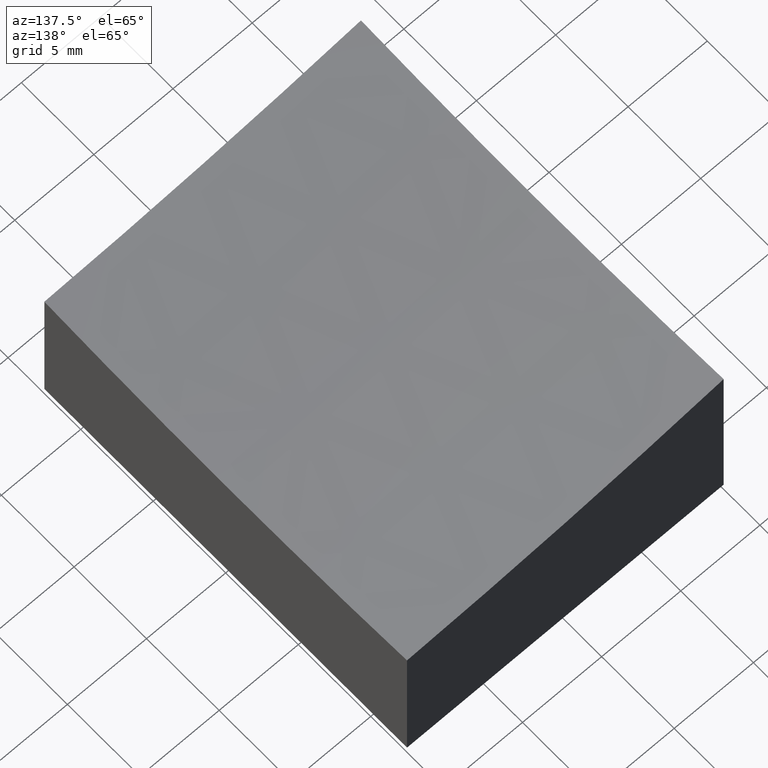
[diagram: clean part render]
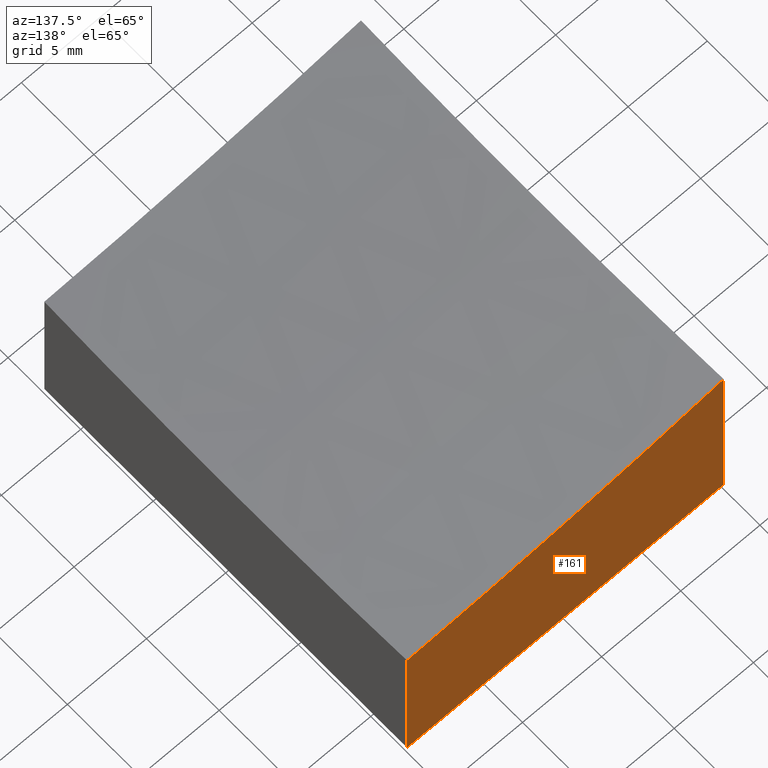
[diagram: same view with one face highlighted and labeled with its STEP entity id]
A machine part, auxiliary view. The second image highlights one B-rep face of the part: STEP entity #161.
In plain terms, the highlighted planar face has unit normal (0, -1, 0).
Its self-contained STEP definition (entity closure, byte-faithful):
#2 = CARTESIAN_POINT ( 'NONE',  ( -9.999999999999998224, 12.49999999999999645, 10.00000000000000000 ) ) ;
#3 = CARTESIAN_POINT ( 'NONE',  ( 10.00000000000000178, 12.50000000000000000, -10.00000000000000000 ) ) ;
#8 = EDGE_CURVE ( 'NONE', #121, #251, #205, .T. ) ;
#20 = EDGE_CURVE ( 'NONE', #121, #186, #221, .T. ) ;
#27 = DIRECTION ( 'NONE',  ( 1.000000000000000000, 1.740778375628798863E-16, 0.000000000000000000 ) ) ;
#28 = DIRECTION ( 'NONE',  ( 1.000000000000000000, 1.734723475976807094E-16, 0.000000000000000000 ) ) ;
#47 = CARTESIAN_POINT ( 'NONE',  ( 10.00000000000000178, 12.50000000000000000, 10.00000000000000000 ) ) ;
#52 = PLANE ( 'NONE',  #125 ) ;
#61 = VECTOR ( 'NONE', #74, 1000.000000000000000 ) ;
#63 = EDGE_CURVE ( 'NONE', #251, #266, #180, .T. ) ;
#74 = DIRECTION ( 'NONE',  ( -0.000000000000000000, -0.000000000000000000, -1.000000000000000000 ) ) ;
#78 = EDGE_LOOP ( 'NONE', ( #248, #206, #91, #225 ) ) ;
#91 = ORIENTED_EDGE ( 'NONE', *, *, #63, .T. ) ;
#121 = VERTEX_POINT ( 'NONE', #216 ) ;
#125 = AXIS2_PLACEMENT_3D ( 'NONE', #135, #138, #28 ) ;
#135 = CARTESIAN_POINT ( 'NONE',  ( 10.00000000000000178, 12.50000000000000000, 10.00000000000000000 ) ) ;
#138 = DIRECTION ( 'NONE',  ( 1.734723475976807094E-16, -1.000000000000000000, 0.000000000000000000 ) ) ;
#140 = LINE ( 'NONE', #3, #267 ) ;
#161 = ADVANCED_FACE ( 'NONE', ( #262 ), #52, .F. ) ;
#180 = LINE ( 'NONE', #47, #260 ) ;
#182 = DIRECTION ( 'NONE',  ( -1.000000000000000000, -1.734723475976807094E-16, 0.000000000000000000 ) ) ;
#186 = VERTEX_POINT ( 'NONE', #198 ) ;
#198 = CARTESIAN_POINT ( 'NONE',  ( -9.999999999999998224, 12.49999999999999645, -10.00000000000000000 ) ) ;
#205 = CIRCLE ( 'NONE', #242, 149.4782592887674753 ) ;
#206 = ORIENTED_EDGE ( 'NONE', *, *, #8, .T. ) ;
#215 = DIRECTION ( 'NONE',  ( -0.000000000000000000, -0.000000000000000000, -1.000000000000000000 ) ) ;
#216 = CARTESIAN_POINT ( 'NONE',  ( -9.999999999999996447, 12.49999999999999645, 1.627173468105036491 ) ) ;
#221 = LINE ( 'NONE', #2, #61 ) ;
#222 = CARTESIAN_POINT ( 'NONE',  ( 10.00000000000000178, 12.50000000000000000, -10.00000000000000000 ) ) ;
#225 = ORIENTED_EDGE ( 'NONE', *, *, #227, .T. ) ;
#227 = EDGE_CURVE ( 'NONE', #266, #186, #140, .T. ) ;
#240 = DIRECTION ( 'NONE',  ( 1.734723475976807094E-16, -1.000000000000000000, 0.000000000000000000 ) ) ;
#242 = AXIS2_PLACEMENT_3D ( 'NONE', #245, #240, #27 ) ;
#244 = CARTESIAN_POINT ( 'NONE',  ( 10.00000000000000178, 12.50000000000000000, -0.3946116832866386481 ) ) ;
#245 = CARTESIAN_POINT ( 'NONE',  ( 15.00000000000001776, 12.50000000000000178, 149.0000000000000000 ) ) ;
#248 = ORIENTED_EDGE ( 'NONE', *, *, #20, .F. ) ;
#251 = VERTEX_POINT ( 'NONE', #244 ) ;
#260 = VECTOR ( 'NONE', #215, 1000.000000000000000 ) ;
#262 = FACE_OUTER_BOUND ( 'NONE', #78, .T. ) ;
#266 = VERTEX_POINT ( 'NONE', #222 ) ;
#267 = VECTOR ( 'NONE', #182, 1000.000000000000000 ) ;